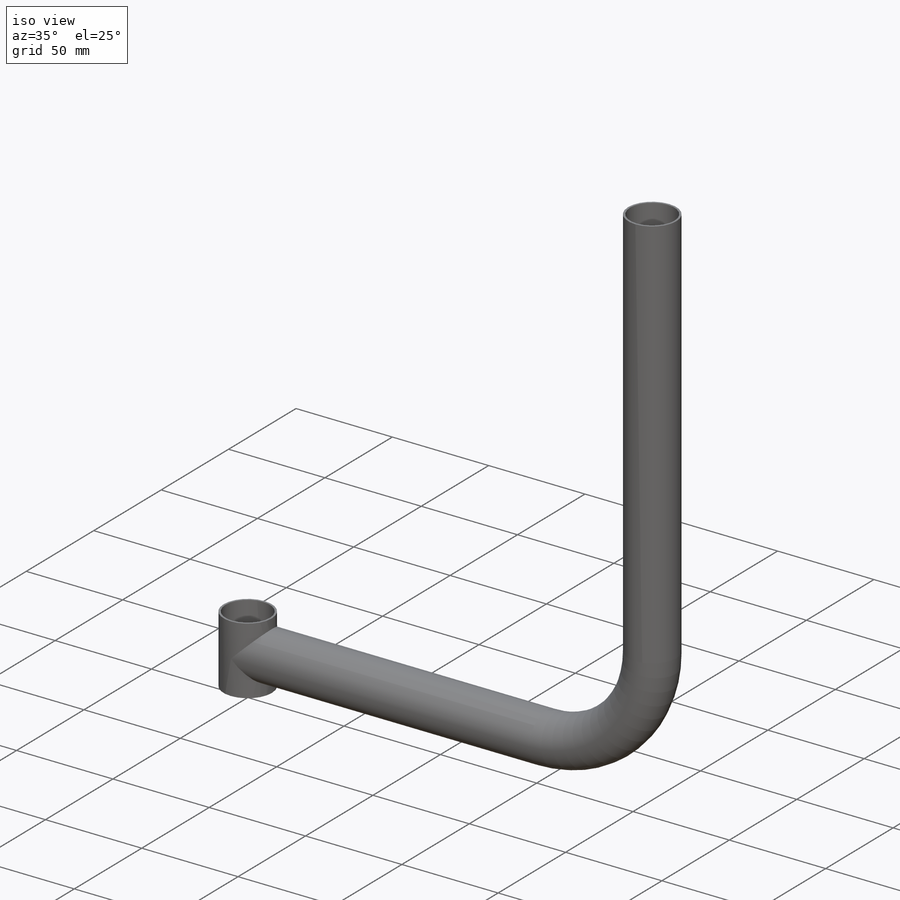
[diagram: iso view]
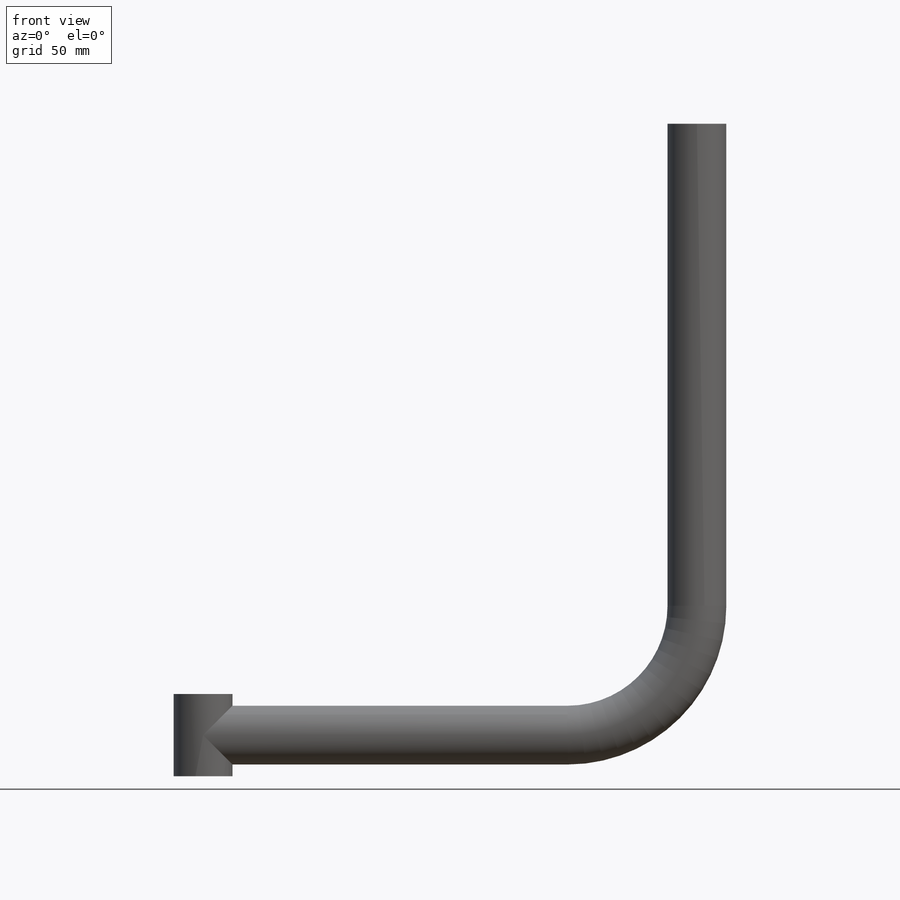
[diagram: front view]
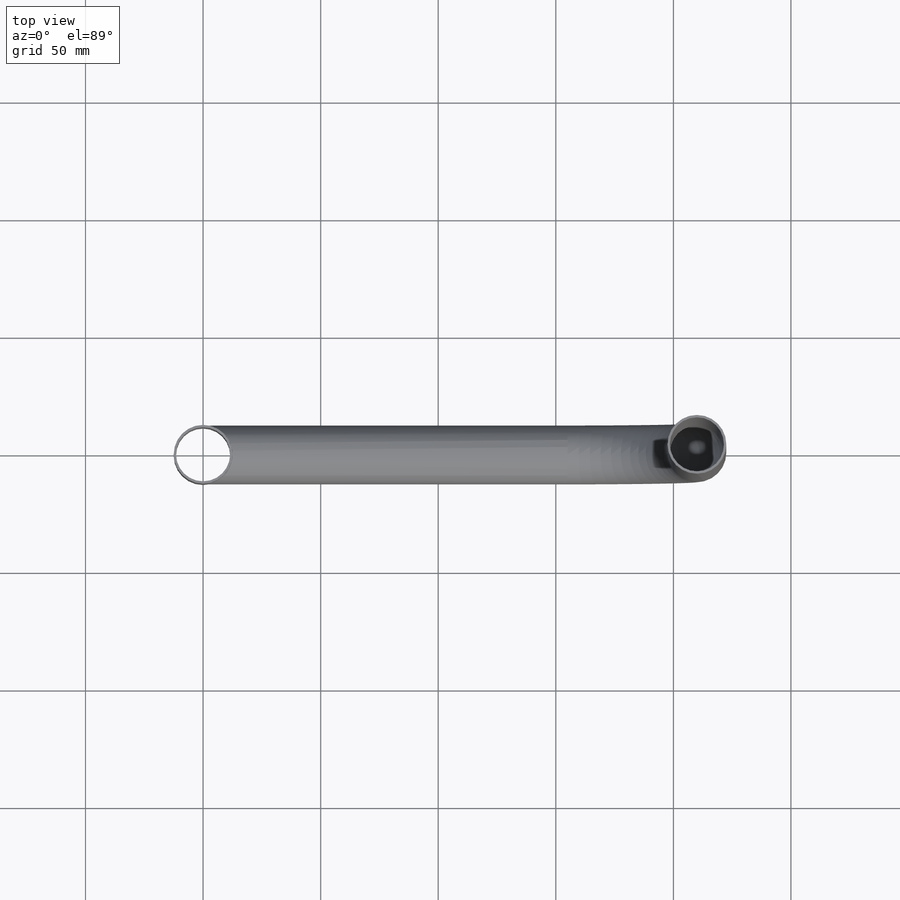
[diagram: top view]
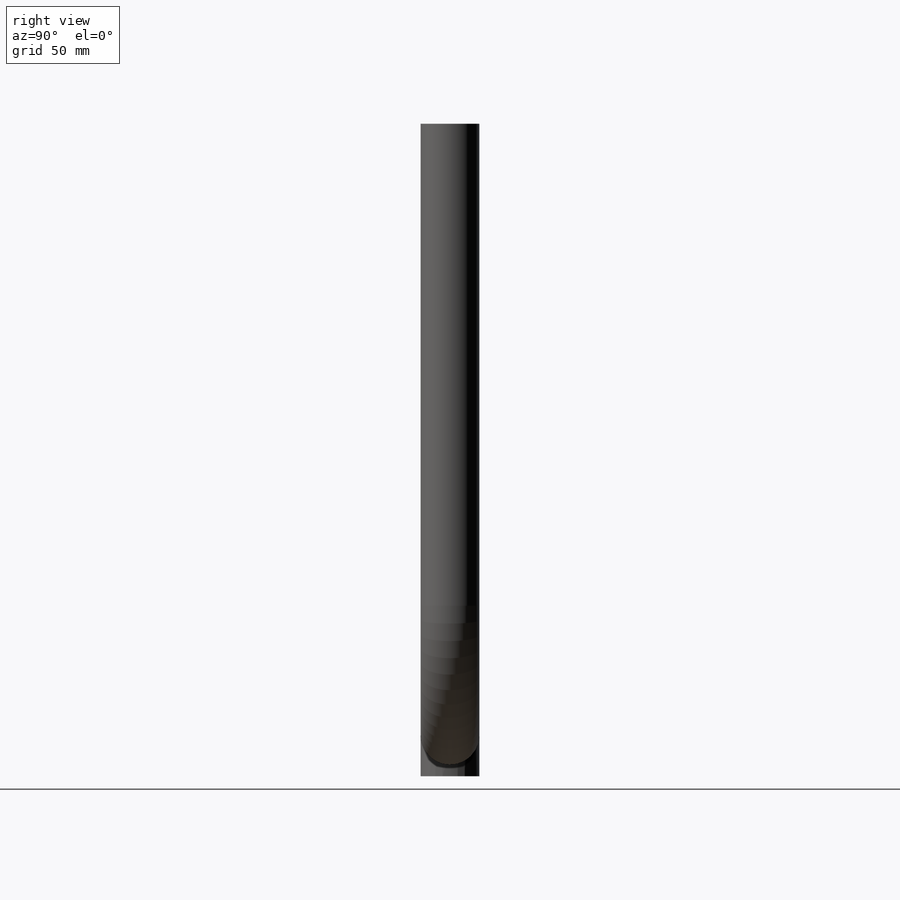
[diagram: right view]
SOLIDWORKS PART (.sldprt)
format: sldprt  version: not decoded by parser v0  size: 151,552 bytes
history: native  units: mm
features: sketch x4, plane x3, material x1, extrude x1, sweep x1, cut_extrude x1 (+10 scaffold rows collapsed)
feature tree (21):
  scaffold x10  (default folders/planes/origin — collapsed)
  material  "材質 <未指定>"
  plane  "前基準面"
  plane  "上基準面"
  plane  "右基準面"
  sketch  "草圖1"  dims[D1=25.0mm D2=23.0mm]
  extrude  "填料-伸長1"  Depth=35mm
  sketch  "草圖2"  dims[D1=25.0mm D2=23.0mm]
  sketch  "草圖6"  dims[D3=55.0mm D1=210.0mm D2=260.0mm]
  sweep  "掃出1"
  cut_extrude  "除料-伸長2"  [1 undecoded]
  sketch  "草圖1<3>"  dims[D1=800.0mm]
decode coverage: 5 of 7 modeling features carry decoded parameters
note: 1 parameter value undecoded
note: suppression state not decoded; provenance and decode notes live in map.json
